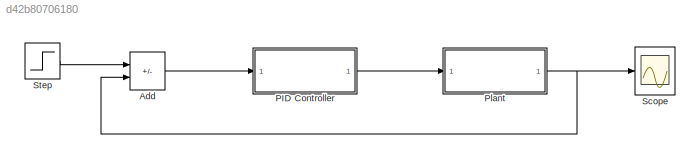
MODEL slx_d42b80706180
KIND model
CONFIG AbsTol = auto
CONFIG EnableMultiTasking = off
CONFIG FixedStep = auto
CONFIG MaxStep = auto
CONFIG MinStep = auto
CONFIG RelTol = 1e-3
CONFIG SampleTimeConstraint = Unconstrained
CONFIG SolverName = ode45
CONFIG StartTime = 0.0
CONFIG StopTime = 120
BLOCK [Sum] Add
  IconShape = rectangular
  Inputs = +-
  Ports = [2, 1]
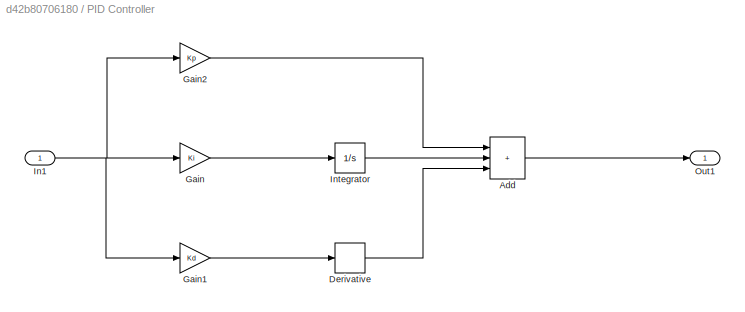
BLOCK [SubSystem] PID Controller
  Ports = [1, 1]
  RequestExecContextInheritance = off
BLOCK [Sum] PID Controller/Add
  IconShape = rectangular
  Inputs = +++
  Ports = [3, 1]
BLOCK [Derivative] PID Controller/Derivative
BLOCK [Gain] PID Controller/Gain
  Gain = Ki
BLOCK [Gain] PID Controller/Gain1
  Gain = Kd
BLOCK [Gain] PID Controller/Gain2
  Gain = Kp
BLOCK [Inport] PID Controller/In1
BLOCK [Integrator] PID Controller/Integrator
  Ports = [1, 1]
BLOCK [Outport] PID Controller/Out1
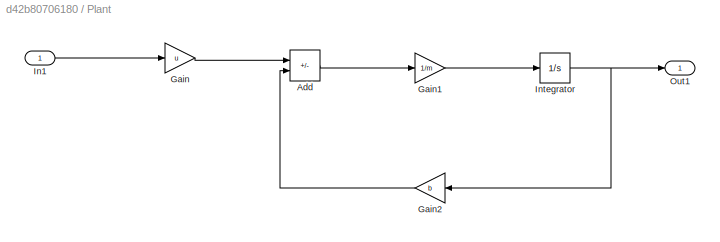
BLOCK [SubSystem] Plant
  Ports = [1, 1]
  RequestExecContextInheritance = off
BLOCK [Sum] Plant/Add
  IconShape = rectangular
  Inputs = +-
  Ports = [2, 1]
BLOCK [Gain] Plant/Gain
  Gain = u
BLOCK [Gain] Plant/Gain1
  Gain = 1/m
BLOCK [Gain] Plant/Gain2
  Gain = b
  NameLocation = top
BLOCK [Inport] Plant/In1
BLOCK [Integrator] Plant/Integrator
  Ports = [1, 1]
BLOCK [Outport] Plant/Out1
BLOCK [Scope] Scope
  Floating = off
  NumInputPorts = 1
  Ports = [1]
  ScopeSpecificationString = Simulink.scopes.TimeScopeBlockCfg('CurrentConfiguration', extmgr.ConfigurationSet(extmgr.Configuration('Core','General UI',true),extmgr.Configuration('Core','Source UI',true),extmgr.Configuration('Sources','WiredSimulink',true),extmgr.Configuration('Visuals','Time Domain',true,'SerializedDisplays',{struct('MinYLimReal','-69.56664','MaxYLimReal','626.09974','YLabelReal','','MinYLimMag','0.00000','M...<+1365ch>
BLOCK [Step] Step
  After = 500
  SampleTime = 0
  Time = 0
LINE Add:1 -> PID Controller:1
LINE PID Controller/Add:1 -> PID Controller/Out1:1
LINE PID Controller/Derivative:1 -> PID Controller/Add:3
LINE PID Controller/Gain1:1 -> PID Controller/Derivative:1
LINE PID Controller/Gain2:1 -> PID Controller/Add:1
LINE PID Controller/Gain:1 -> PID Controller/Integrator:1
NET PID Controller/In1:1 -> PID Controller/Gain1:1, PID Controller/Gain2:1, PID Controller/Gain:1
LINE PID Controller/Integrator:1 -> PID Controller/Add:2
LINE PID Controller:1 -> Plant:1
LINE Plant/Add:1 -> Plant/Gain1:1
LINE Plant/Gain1:1 -> Plant/Integrator:1
LINE Plant/Gain2:1 -> Plant/Add:2
LINE Plant/Gain:1 -> Plant/Add:1
LINE Plant/In1:1 -> Plant/Gain:1
NET Plant/Integrator:1 -> Plant/Gain2:1, Plant/Out1:1
NET Plant:1 -> Add:2, Scope:1
LINE Step:1 -> Add:1
note: NET lines group one-source signal fan-out (src -> all destinations, sorted); 1:1 wires keep LINE
